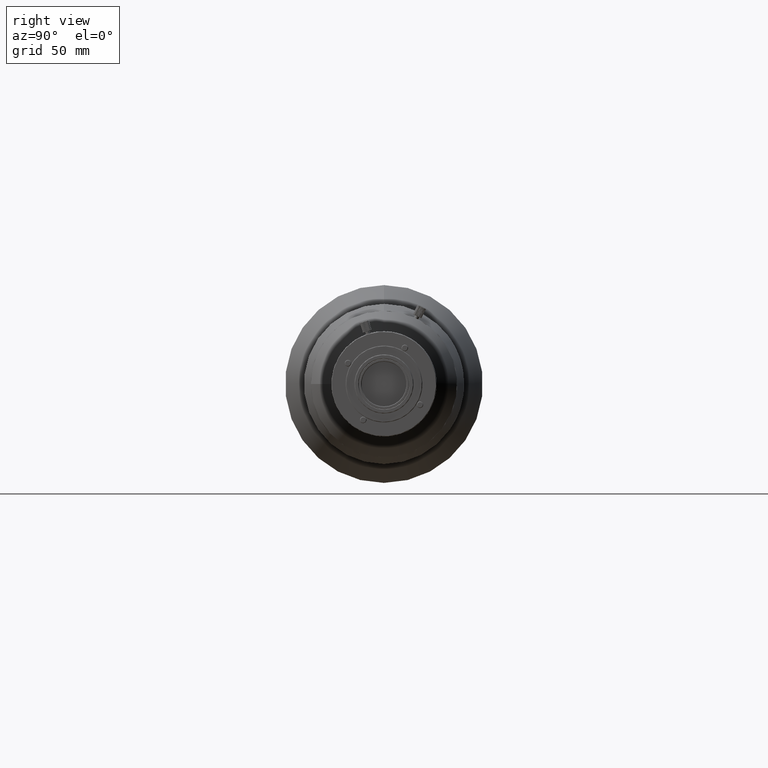
[diagram: clean part render]
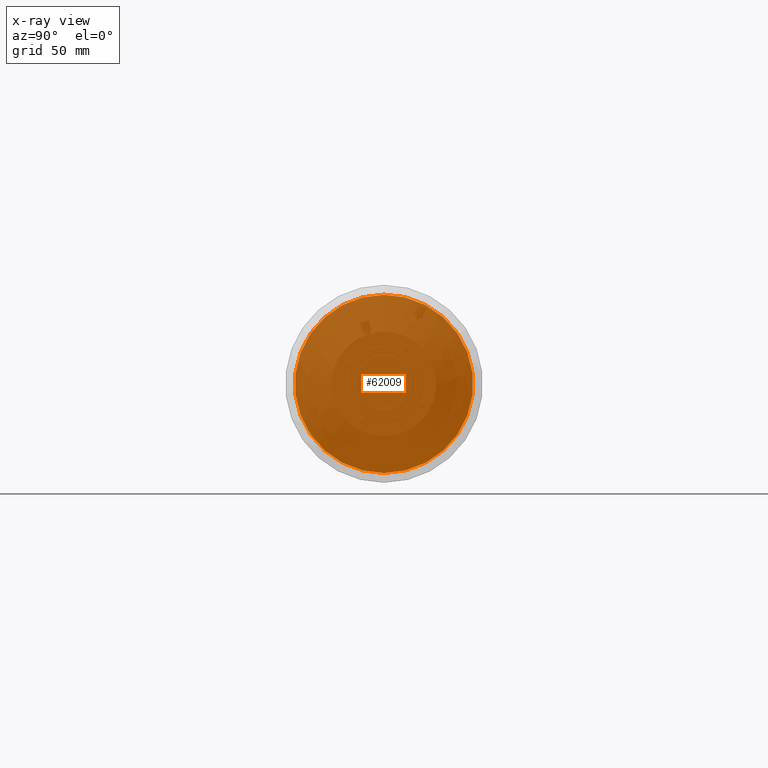
[diagram: x-ray — body ghosted, one internal face saturated and labeled with its STEP entity id]
A machine part, right view, then the same camera in x-ray: the body is ghosted and one INTERNAL B-rep face — a face not visible from any outside direction — is saturated and labeled: STEP entity #62009.
In plain terms, the highlighted planar face has unit normal (1, 0, 0).
Its self-contained STEP definition (entity closure, byte-faithful):
#2688 = CARTESIAN_POINT ( 'NONE',  ( -61.49732065252197799, 10.19269740323191975, 154.4499999608852647 ) ) ;
#7044 = FACE_OUTER_BOUND ( 'NONE', #49167, .T. ) ;
#7759 = CARTESIAN_POINT ( 'NONE',  ( -61.49732065252214142, 10.19269740323191975, 154.4499999608848668 ) ) ;
#7953 = DIRECTION ( 'NONE',  ( -1.000000000000000000, -0.000000000000000000, -0.000000000000000000 ) ) ;
#20315 = AXIS2_PLACEMENT_3D ( 'NONE', #2688, #7953, #46309 ) ;
#20771 = ORIENTED_EDGE ( 'NONE', *, *, #37177, .T. ) ;
#22562 = CIRCLE ( 'NONE', #20315, 38.40000000000065938 ) ;
#30099 = VERTEX_POINT ( 'NONE', #36018 ) ;
#31056 = AXIS2_PLACEMENT_3D ( 'NONE', #7759, #60391, #61077 ) ;
#36018 = CARTESIAN_POINT ( 'NONE',  ( -61.49732065252197799, 10.19269740323191975, 192.8499999608859241 ) ) ;
#37177 = EDGE_CURVE ( 'NONE', #30099, #30099, #22562, .T. ) ;
#39115 = PLANE ( 'NONE',  #31056 ) ;
#46309 = DIRECTION ( 'NONE',  ( 0.000000000000000000, 0.000000000000000000, 1.000000000000000000 ) ) ;
#49167 = EDGE_LOOP ( 'NONE', ( #20771 ) ) ;
#60391 = DIRECTION ( 'NONE',  ( 1.000000000000000000, 0.000000000000000000, 0.000000000000000000 ) ) ;
#61077 = DIRECTION ( 'NONE',  ( 0.000000000000000000, 0.000000000000000000, -1.000000000000000000 ) ) ;
#62009 = ADVANCED_FACE ( 'NONE', ( #7044 ), #39115, .F. ) ;